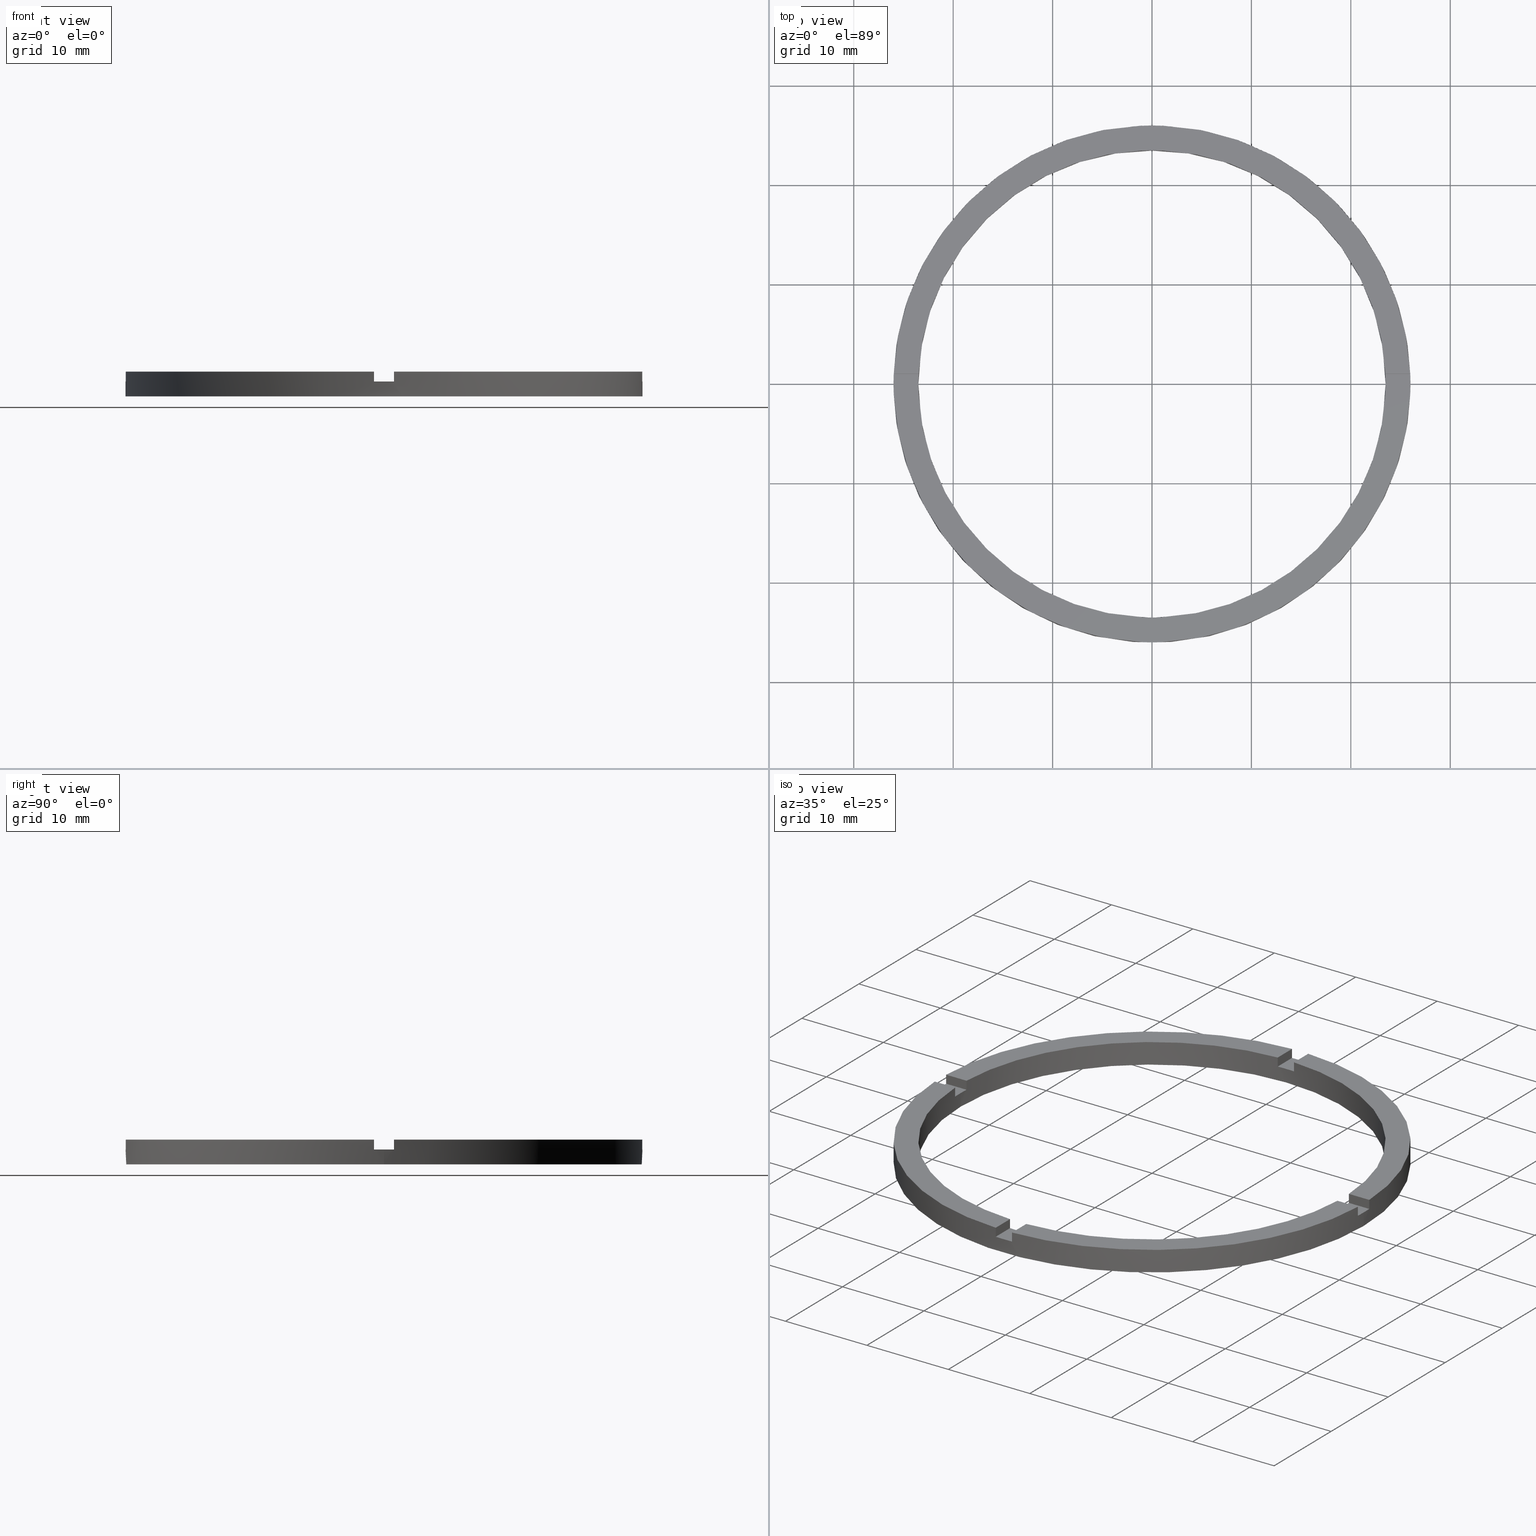
[diagram: canonical four-view strip — front | top / right | iso, engineering-drawing reading convention]
A machine part, canonical four-view strip (front | top / right | iso — engineering-drawing reading convention). The complete STEP part file that produces these views, byte-faithful:
ISO-10303-21;
HEADER;
FILE_DESCRIPTION (( 'STEP AP203' ),
    '1' );
FILE_NAME ('514108.step',
    '2024-12-26T02:38:15',
    ( 'MSI' ),
    ( '' ),
    'SwSTEP 2.0',
    'SolidWorks 2020',
    '' );
FILE_SCHEMA (( 'CONFIG_CONTROL_DESIGN' ));
ENDSEC;

DATA;
#1 = CARTESIAN_POINT ( 'NONE',  ( 0.000000000000000000, 0.000000000000000000, 2.500000000000000000 ) ) ;
#2 = CARTESIAN_POINT ( 'NONE',  ( -1.000000000000160760, -23.47871376374778407, 1.500000000000000000 ) ) ;
#3 = DIRECTION ( 'NONE',  ( 0.000000000000000000, 0.000000000000000000, 1.000000000000000000 ) ) ;
#4 = DIRECTION ( 'NONE',  ( 1.000000000000000000, 0.000000000000000000, -0.000000000000000000 ) ) ;
#5 = VECTOR ( 'NONE', #650, 1000.000000000000000 ) ;
#6 = CARTESIAN_POINT ( 'NONE',  ( 0.9999999999998397948, -25.98076211353317078, 1.500000000000000000 ) ) ;
#7 = VECTOR ( 'NONE', #691, 1000.000000000000000 ) ;
#8 = EDGE_CURVE ( 'NONE', #701, #239, #758, .T. ) ;
#9 = CIRCLE ( 'NONE', #347, 23.50000000000000355 ) ;
#10 = DIRECTION ( 'NONE',  ( 1.000000000000000000, 0.000000000000000000, -0.000000000000000000 ) ) ;
#11 = ORIENTED_EDGE ( 'NONE', *, *, #552, .F. ) ;
#12 = LINE ( 'NONE', #638, #559 ) ;
#13 = VERTEX_POINT ( 'NONE', #108 ) ;
#14 = EDGE_CURVE ( 'NONE', #178, #760, #232, .T. ) ;
#15 = LINE ( 'NONE', #135, #553 ) ;
#16 = DIRECTION ( 'NONE',  ( 0.000000000000000000, 0.000000000000000000, 1.000000000000000000 ) ) ;
#17 = VERTEX_POINT ( 'NONE', #537 ) ;
#18 = CARTESIAN_POINT ( 'NONE',  ( 0.000000000000000000, 0.000000000000000000, 1.500000000000000000 ) ) ;
#19 = CC_DESIGN_APPROVAL ( #477, ( #763 ) ) ;
#20 = FACE_OUTER_BOUND ( 'NONE', #512, .T. ) ;
#21 = AXIS2_PLACEMENT_3D ( 'NONE', #23, #465, #67 ) ;
#22 = VERTEX_POINT ( 'NONE', #409 ) ;
#23 = CARTESIAN_POINT ( 'NONE',  ( 0.000000000000000000, 0.000000000000000000, 1.500000000000000000 ) ) ;
#24 = VECTOR ( 'NONE', #333, 1000.000000000000000 ) ;
#25 = ORIENTED_EDGE ( 'NONE', *, *, #666, .T. ) ;
#26 = VECTOR ( 'NONE', #314, 1000.000000000000000 ) ;
#27 = AXIS2_PLACEMENT_3D ( 'NONE', #125, #646, #530 ) ;
#28 = CIRCLE ( 'NONE', #138, 23.50000000000000355 ) ;
#29 = CARTESIAN_POINT ( 'NONE',  ( -1.000000000000160760, -23.47871376374778407, 2.500000000000000000 ) ) ;
#30 = CIRCLE ( 'NONE', #524, 26.00000000000000355 ) ;
#31 = APPROVAL_ROLE ( '' ) ;
#32 = VECTOR ( 'NONE', #583, 1000.000000000000000 ) ;
#33 = APPLICATION_PROTOCOL_DEFINITION ( 'international standard', 'config_control_design', 1994, #337 ) ;
#34 = LINE ( 'NONE', #479, #570 ) ;
#35 = VECTOR ( 'NONE', #260, 1000.000000000000000 ) ;
#36 = CIRCLE ( 'NONE', #714, 23.50000000000000355 ) ;
#37 = DIRECTION ( 'NONE',  ( 1.000000000000000000, 0.000000000000000000, -0.000000000000000000 ) ) ;
#38 = FACE_OUTER_BOUND ( 'NONE', #680, .T. ) ;
#39 = DIRECTION ( 'NONE',  ( -0.000000000000000000, -0.000000000000000000, -1.000000000000000000 ) ) ;
#40 = LINE ( 'NONE', #722, #568 ) ;
#41 = FACE_OUTER_BOUND ( 'NONE', #224, .T. ) ;
#42 = CARTESIAN_POINT ( 'NONE',  ( -1.000000000000161648, -16.00000000000018119, 2.500000000000000000 ) ) ;
#43 = FACE_OUTER_BOUND ( 'NONE', #238, .T. ) ;
#44 = ADVANCED_FACE ( 'NONE', ( #450 ), #73, .F. ) ;
#45 = VECTOR ( 'NONE', #707, 1000.000000000000000 ) ;
#46 = DIRECTION ( 'NONE',  ( 1.000000000000000000, 0.000000000000000000, 0.000000000000000000 ) ) ;
#47 = CIRCLE ( 'NONE', #768, 23.50000000000000355 ) ;
#48 = LINE ( 'NONE', #197, #35 ) ;
#49 = DIRECTION ( 'NONE',  ( 1.000000000000000000, 1.734723475976806848E-16, -0.000000000000000000 ) ) ;
#50 = LOCAL_TIME ( 10, 38, 15.00000000000000000, #587 ) ;
#51 = COORDINATED_UNIVERSAL_TIME_OFFSET ( 8, 0, .AHEAD. ) ;
#52 = EDGE_CURVE ( 'NONE', #685, #548, #150, .T. ) ;
#53 = COORDINATED_UNIVERSAL_TIME_OFFSET ( 8, 0, .AHEAD. ) ;
#54 = PERSON_AND_ORGANIZATION ( #509, #70 ) ;
#55 = APPROVAL_DATE_TIME ( #318, #86 ) ;
#56 = DIRECTION ( 'NONE',  ( 1.000000000000000000, 0.000000000000000000, -0.000000000000000000 ) ) ;
#57 = LOCAL_TIME ( 10, 38, 15.00000000000000000, #53 ) ;
#58 = ADVANCED_FACE ( 'NONE', ( #414 ), #699, .T. ) ;
#59 = PERSON_AND_ORGANIZATION ( #509, #70 ) ;
#60 = DIRECTION ( 'NONE',  ( 0.000000000000000000, 0.000000000000000000, 1.000000000000000000 ) ) ;
#61 = COORDINATED_UNIVERSAL_TIME_OFFSET ( 8, 0, .AHEAD. ) ;
#62 = ORIENTED_EDGE ( 'NONE', *, *, #147, .T. ) ;
#63 = VERTEX_POINT ( 'NONE', #2 ) ;
#64 = EDGE_CURVE ( 'NONE', #429, #494, #153, .T. ) ;
#65 = VERTEX_POINT ( 'NONE', #708 ) ;
#66 = LOCAL_TIME ( 10, 38, 15.00000000000000000, #582 ) ;
#67 = DIRECTION ( 'NONE',  ( 1.000000000000000000, 0.000000000000000000, -0.000000000000000000 ) ) ;
#68 = PERSON_AND_ORGANIZATION ( #509, #70 ) ;
#69 = ORIENTED_EDGE ( 'NONE', *, *, #390, .T. ) ;
#70 = ORGANIZATION ( 'δָ��', 'δָ��', '' ) ;
#71 = AXIS2_PLACEMENT_3D ( 'NONE', #517, #381, #128 ) ;
#72 = ORIENTED_EDGE ( 'NONE', *, *, #651, .F. ) ;
#73 = PLANE ( 'NONE',  #678 ) ;
#74 = DATE_AND_TIME ( #303, #302 ) ;
#75 = ORIENTED_EDGE ( 'NONE', *, *, #487, .T. ) ;
#76 = DATE_AND_TIME ( #305, #50 ) ;
#77 = EDGE_LOOP ( 'NONE', ( #217, #596, #230, #291 ) ) ;
#78 = DIRECTION ( 'NONE',  ( -0.000000000000000000, -0.000000000000000000, -1.000000000000000000 ) ) ;
#79 = PERSON_AND_ORGANIZATION ( #509, #70 ) ;
#80 = PLANE ( 'NONE',  #348 ) ;
#81 = CARTESIAN_POINT ( 'NONE',  ( 0.000000000000000000, 0.000000000000000000, 1.500000000000000000 ) ) ;
#82 = CARTESIAN_POINT ( 'NONE',  ( 0.000000000000000000, 0.000000000000000000, 2.500000000000000000 ) ) ;
#83 = DIRECTION ( 'NONE',  ( -1.734723475976806848E-16, 1.000000000000000000, 0.000000000000000000 ) ) ;
#84 = CARTESIAN_POINT ( 'NONE',  ( 0.000000000000000000, 0.000000000000000000, 2.500000000000000000 ) ) ;
#85 = EDGE_CURVE ( 'NONE', #694, #760, #172, .T. ) ;
#86 = APPROVAL ( #413, 'δָ��' ) ;
#87 = PLANE ( 'NONE',  #21 ) ;
#88 = CARTESIAN_POINT ( 'NONE',  ( 25.98076211353315657, -1.000000000000157430, 2.500000000000000000 ) ) ;
#89 = AXIS2_PLACEMENT_3D ( 'NONE', #525, #137, #601 ) ;
#90 = EDGE_CURVE ( 'NONE', #163, #731, #158, .T. ) ;
#91 = CARTESIAN_POINT ( 'NONE',  ( 25.98076211353317078, 0.9999999999998425704, 2.500000000000000000 ) ) ;
#92 = VERTEX_POINT ( 'NONE', #6 ) ;
#93 = AXIS2_PLACEMENT_3D ( 'NONE', #293, #687, #607 ) ;
#94 = DIRECTION ( 'NONE',  ( -0.000000000000000000, -0.000000000000000000, -1.000000000000000000 ) ) ;
#95 = EDGE_CURVE ( 'NONE', #63, #120, #676, .T. ) ;
#96 = DIRECTION ( 'NONE',  ( 1.301042606982605074E-16, -1.000000000000000000, 0.000000000000000000 ) ) ;
#97 = AXIS2_PLACEMENT_3D ( 'NONE', #463, #299, #529 ) ;
#98 = DIRECTION ( 'NONE',  ( 0.000000000000000000, -0.000000000000000000, 1.000000000000000000 ) ) ;
#99 = CARTESIAN_POINT ( 'NONE',  ( 23.50000000000000355, 2.877919977996280715E-15, 1.500000000000000000 ) ) ;
#100 = VERTEX_POINT ( 'NONE', #579 ) ;
#101 = DIRECTION ( 'NONE',  ( 1.000000000000000000, 0.000000000000000000, 0.000000000000000000 ) ) ;
#102 = CARTESIAN_POINT ( 'NONE',  ( -26.00000000000000355, 0.000000000000000000, 2.500000000000000000 ) ) ;
#103 = DIRECTION ( 'NONE',  ( 0.000000000000000000, 0.000000000000000000, 1.000000000000000000 ) ) ;
#104 = ADVANCED_FACE ( 'NONE', ( #675 ), #684, .F. ) ;
#105 = DIRECTION ( 'NONE',  ( 1.000000000000000000, 0.000000000000000000, 0.000000000000000000 ) ) ;
#106 = CARTESIAN_POINT ( 'NONE',  ( 23.47871376374779828, 0.9999999999998425704, 2.500000000000000000 ) ) ;
#107 = EDGE_CURVE ( 'NONE', #731, #685, #156, .T. ) ;
#108 = CARTESIAN_POINT ( 'NONE',  ( 23.47871376374778407, -1.000000000000157430, 1.500000000000000000 ) ) ;
#109 = CC_DESIGN_APPROVAL ( #86, ( #663 ) ) ;
#110 = CARTESIAN_POINT ( 'NONE',  ( 0.000000000000000000, 0.000000000000000000, 1.500000000000000000 ) ) ;
#111 = DIRECTION ( 'NONE',  ( 1.000000000000000000, 4.336808689942017120E-17, 0.000000000000000000 ) ) ;
#112 = CARTESIAN_POINT ( 'NONE',  ( -1.000000000000026201, 23.47871376374779118, 1.500000000000000000 ) ) ;
#113 = AXIS2_PLACEMENT_3D ( 'NONE', #353, #702, #782 ) ;
#114 = AXIS2_PLACEMENT_3D ( 'NONE', #659, #614, #306 ) ;
#115 = DIRECTION ( 'NONE',  ( 1.000000000000000000, 0.000000000000000000, 0.000000000000000000 ) ) ;
#116 = VERTEX_POINT ( 'NONE', #738 ) ;
#117 = DIRECTION ( 'NONE',  ( 4.336808689942017120E-17, -1.000000000000000000, 0.000000000000000000 ) ) ;
#118 = AXIS2_PLACEMENT_3D ( 'NONE', #655, #773, #105 ) ;
#119 = ORIENTED_EDGE ( 'NONE', *, *, #756, .F. ) ;
#120 = VERTEX_POINT ( 'NONE', #29 ) ;
#121 = EDGE_CURVE ( 'NONE', #731, #17, #449, .T. ) ;
#122 = ORIENTED_EDGE ( 'NONE', *, *, #608, .T. ) ;
#123 = DIRECTION ( 'NONE',  ( -0.000000000000000000, -0.000000000000000000, -1.000000000000000000 ) ) ;
#124 = PLANE ( 'NONE',  #482 ) ;
#125 = CARTESIAN_POINT ( 'NONE',  ( 0.9999999999999737987, 16.00000000000000000, 1.500000000000000000 ) ) ;
#126 = DIRECTION ( 'NONE',  ( -1.000000000000000000, -4.336808689942017120E-17, -0.000000000000000000 ) ) ;
#127 = CARTESIAN_POINT ( 'NONE',  ( 26.00000000000000355, 3.184081677783118585E-15, 2.500000000000000000 ) ) ;
#128 = DIRECTION ( 'NONE',  ( 1.000000000000000000, 0.000000000000000000, 0.000000000000000000 ) ) ;
#129 = MECHANICAL_CONTEXT ( 'NONE', #337, 'mechanical' ) ;
#130 = DESIGN_CONTEXT ( 'detailed design', #382, 'design' ) ;
#131 = CARTESIAN_POINT ( 'NONE',  ( 0.000000000000000000, 0.000000000000000000, 0.000000000000000000 ) ) ;
#132 =( NAMED_UNIT ( * ) PLANE_ANGLE_UNIT ( ) SI_UNIT ( $, .RADIAN. ) );
#133 = CARTESIAN_POINT ( 'NONE',  ( -25.98076211353316367, -1.000000000000026201, 1.500000000000000000 ) ) ;
#134 = AXIS2_PLACEMENT_3D ( 'NONE', #142, #781, #765 ) ;
#135 = CARTESIAN_POINT ( 'NONE',  ( 0.9999999999999737987, 25.98076211353316367, 2.500000000000000000 ) ) ;
#136 = CC_DESIGN_PERSON_AND_ORGANIZATION_ASSIGNMENT ( #79, #404, ( #763 ) ) ;
#137 = DIRECTION ( 'NONE',  ( 0.000000000000000000, 0.000000000000000000, 1.000000000000000000 ) ) ;
#138 = AXIS2_PLACEMENT_3D ( 'NONE', #203, #343, #46 ) ;
#139 = AXIS2_PLACEMENT_3D ( 'NONE', #82, #630, #665 ) ;
#140 = CARTESIAN_POINT ( 'NONE',  ( -25.98076211353316367, 0.9999999999999737987, 2.500000000000000000 ) ) ;
#141 = ADVANCED_FACE ( 'NONE', ( #152 ), #439, .F. ) ;
#142 = CARTESIAN_POINT ( 'NONE',  ( 0.000000000000000000, 0.000000000000000000, 2.500000000000000000 ) ) ;
#143 = CARTESIAN_POINT ( 'NONE',  ( 0.000000000000000000, 0.000000000000000000, 2.500000000000000000 ) ) ;
#144 = LINE ( 'NONE', #667, #164 ) ;
#145 = ADVANCED_FACE ( 'NONE', ( #703 ), #279, .F. ) ;
#146 = CARTESIAN_POINT ( 'NONE',  ( 23.47871376374779828, 0.9999999999998425704, 1.500000000000000000 ) ) ;
#147 = EDGE_CURVE ( 'NONE', #22, #481, #434, .T. ) ;
#148 = LINE ( 'NONE', #211, #425 ) ;
#149 = LINE ( 'NONE', #400, #695 ) ;
#150 = CIRCLE ( 'NONE', #114, 26.00000000000000355 ) ;
#151 = CARTESIAN_POINT ( 'NONE',  ( 0.000000000000000000, 0.000000000000000000, 2.500000000000000000 ) ) ;
#152 = FACE_OUTER_BOUND ( 'NONE', #589, .T. ) ;
#153 = LINE ( 'NONE', #643, #406 ) ;
#154 = ORIENTED_EDGE ( 'NONE', *, *, #511, .T. ) ;
#155 = CARTESIAN_POINT ( 'NONE',  ( 23.50000000000000355, 2.877919977996280715E-15, 2.500000000000000000 ) ) ;
#156 = LINE ( 'NONE', #127, #157 ) ;
#157 = VECTOR ( 'NONE', #627, 1000.000000000000000 ) ;
#158 = CIRCLE ( 'NONE', #652, 26.00000000000000355 ) ;
#159 = CIRCLE ( 'NONE', #394, 26.00000000000000355 ) ;
#160 = ORIENTED_EDGE ( 'NONE', *, *, #350, .T. ) ;
#161 = VECTOR ( 'NONE', #357, 1000.000000000000000 ) ;
#162 = DIRECTION ( 'NONE',  ( 0.000000000000000000, 0.000000000000000000, 1.000000000000000000 ) ) ;
#163 = VERTEX_POINT ( 'NONE', #388 ) ;
#164 = VECTOR ( 'NONE', #49, 1000.000000000000000 ) ;
#165 = PERSON_AND_ORGANIZATION_ROLE ( 'design_supplier' ) ;
#166 = ORIENTED_EDGE ( 'NONE', *, *, #645, .F. ) ;
#167 = PLANE ( 'NONE',  #629 ) ;
#168 = CYLINDRICAL_SURFACE ( 'NONE', #97, 26.00000000000000355 ) ;
#169 = ORIENTED_EDGE ( 'NONE', *, *, #257, .T. ) ;
#170 = EDGE_CURVE ( 'NONE', #116, #766, #144, .T. ) ;
#171 = FACE_OUTER_BOUND ( 'NONE', #502, .T. ) ;
#172 = CIRCLE ( 'NONE', #641, 26.00000000000000355 ) ;
#173 = ORIENTED_EDGE ( 'NONE', *, *, #107, .F. ) ;
#174 = VECTOR ( 'NONE', #325, 1000.000000000000000 ) ;
#175 = ORIENTED_EDGE ( 'NONE', *, *, #552, .T. ) ;
#176 = EDGE_CURVE ( 'NONE', #429, #770, #447, .T. ) ;
#177 =( LENGTH_UNIT ( ) NAMED_UNIT ( * ) SI_UNIT ( .MILLI., .METRE. ) );
#178 = VERTEX_POINT ( 'NONE', #532 ) ;
#179 = AXIS2_PLACEMENT_3D ( 'NONE', #143, #284, #391 ) ;
#180 = LINE ( 'NONE', #474, #673 ) ;
#181 = CARTESIAN_POINT ( 'NONE',  ( 0.000000000000000000, 0.000000000000000000, 2.500000000000000000 ) ) ;
#182 = LINE ( 'NONE', #683, #452 ) ;
#183 = CARTESIAN_POINT ( 'NONE',  ( 0.9999999999998384625, -16.00000000000018119, 2.500000000000000000 ) ) ;
#184 = ORIENTED_EDGE ( 'NONE', *, *, #720, .T. ) ;
#185 = DIRECTION ( 'NONE',  ( 0.000000000000000000, 0.000000000000000000, 1.000000000000000000 ) ) ;
#186 = VERTEX_POINT ( 'NONE', #636 ) ;
#187 = EDGE_CURVE ( 'NONE', #548, #685, #410, .T. ) ;
#188 = ORIENTED_EDGE ( 'NONE', *, *, #271, .F. ) ;
#189 = CARTESIAN_POINT ( 'NONE',  ( 0.000000000000000000, 0.000000000000000000, 1.500000000000000000 ) ) ;
#190 = ORIENTED_EDGE ( 'NONE', *, *, #438, .F. ) ;
#191 = PLANE ( 'NONE',  #571 ) ;
#192 = ORIENTED_EDGE ( 'NONE', *, *, #307, .F. ) ;
#193 = PERSON_AND_ORGANIZATION_ROLE ( 'design_owner' ) ;
#194 = ORIENTED_EDGE ( 'NONE', *, *, #170, .T. ) ;
#195 = ORIENTED_EDGE ( 'NONE', *, *, #223, .T. ) ;
#196 = VERTEX_POINT ( 'NONE', #779 ) ;
#197 = CARTESIAN_POINT ( 'NONE',  ( 23.47871376374778407, -1.000000000000157430, 2.500000000000000000 ) ) ;
#198 = ORIENTED_EDGE ( 'NONE', *, *, #370, .T. ) ;
#199 = ORIENTED_EDGE ( 'NONE', *, *, #370, .F. ) ;
#200 = ORIENTED_EDGE ( 'NONE', *, *, #718, .F. ) ;
#201 = ORIENTED_EDGE ( 'NONE', *, *, #645, .T. ) ;
#202 = VERTEX_POINT ( 'NONE', #140 ) ;
#203 = CARTESIAN_POINT ( 'NONE',  ( 0.000000000000000000, 0.000000000000000000, 1.500000000000000000 ) ) ;
#204 = ORIENTED_EDGE ( 'NONE', *, *, #14, .F. ) ;
#205 = ORIENTED_EDGE ( 'NONE', *, *, #640, .F. ) ;
#206 = EDGE_CURVE ( 'NONE', #436, #737, #697, .T. ) ;
#207 = VERTEX_POINT ( 'NONE', #99 ) ;
#208 = ORIENTED_EDGE ( 'NONE', *, *, #8, .T. ) ;
#209 = DIRECTION ( 'NONE',  ( -1.000000000000000000, -4.336808689942017120E-17, -0.000000000000000000 ) ) ;
#210 = ORIENTED_EDGE ( 'NONE', *, *, #430, .F. ) ;
#211 = CARTESIAN_POINT ( 'NONE',  ( -23.47871376374779118, -1.000000000000025757, 2.500000000000000000 ) ) ;
#212 = PRODUCT_RELATED_PRODUCT_CATEGORY ( 'detail', '', ( #339 ) ) ;
#213 = VERTEX_POINT ( 'NONE', #146 ) ;
#214 = CC_DESIGN_SECURITY_CLASSIFICATION ( #663, ( #763 ) ) ;
#215 = EDGE_LOOP ( 'NONE', ( #478, #740, #572, #485 ) ) ;
#216 = ORIENTED_EDGE ( 'NONE', *, *, #487, .F. ) ;
#217 = ORIENTED_EDGE ( 'NONE', *, *, #64, .F. ) ;
#218 = CARTESIAN_POINT ( 'NONE',  ( 15.99999999999999645, -1.000000000000157874, 1.500000000000000000 ) ) ;
#219 = ORIENTED_EDGE ( 'NONE', *, *, #526, .T. ) ;
#220 = CARTESIAN_POINT ( 'NONE',  ( -26.00000000000000355, 0.000000000000000000, 0.000000000000000000 ) ) ;
#221 = ORIENTED_EDGE ( 'NONE', *, *, #669, .T. ) ;
#222 = ADVANCED_FACE ( 'NONE', ( #688 ), #418, .F. ) ;
#223 = EDGE_CURVE ( 'NONE', #436, #622, #408, .T. ) ;
#224 = EDGE_LOOP ( 'NONE', ( #75, #600, #464, #287 ) ) ;
#225 = EDGE_LOOP ( 'NONE', ( #272, #567, #324, #574 ) ) ;
#226 = EDGE_CURVE ( 'NONE', #120, #186, #677, .T. ) ;
#227 = PLANE ( 'NONE',  #113 ) ;
#228 = ORIENTED_EDGE ( 'NONE', *, *, #271, .T. ) ;
#229 = AXIS2_PLACEMENT_3D ( 'NONE', #110, #304, #617 ) ;
#230 = ORIENTED_EDGE ( 'NONE', *, *, #411, .T. ) ;
#231 = EDGE_LOOP ( 'NONE', ( #455, #729, #233, #11 ) ) ;
#232 = LINE ( 'NONE', #623, #674 ) ;
#233 = ORIENTED_EDGE ( 'NONE', *, *, #411, .F. ) ;
#234 = ORIENTED_EDGE ( 'NONE', *, *, #501, .F. ) ;
#235 = DIRECTION ( 'NONE',  ( 0.000000000000000000, 0.000000000000000000, 1.000000000000000000 ) ) ;
#236 = ORIENTED_EDGE ( 'NONE', *, *, #780, .F. ) ;
#237 = DIRECTION ( 'NONE',  ( 0.000000000000000000, 0.000000000000000000, 1.000000000000000000 ) ) ;
#238 = EDGE_LOOP ( 'NONE', ( #194, #746, #483, #236 ) ) ;
#239 = VERTEX_POINT ( 'NONE', #133 ) ;
#240 = ORIENTED_EDGE ( 'NONE', *, *, #772, .F. ) ;
#241 = CARTESIAN_POINT ( 'NONE',  ( -1.000000000000026201, 16.00000000000000000, 1.500000000000000000 ) ) ;
#242 = ORIENTED_EDGE ( 'NONE', *, *, #469, .F. ) ;
#243 = CARTESIAN_POINT ( 'NONE',  ( -16.00000000000018474, -1.000000000000024425, 1.500000000000000000 ) ) ;
#244 = CARTESIAN_POINT ( 'NONE',  ( -16.00000000000018474, 0.9999999999999754641, 2.500000000000000000 ) ) ;
#245 = CARTESIAN_POINT ( 'NONE',  ( -23.47871376374779118, -1.000000000000025757, 2.500000000000000000 ) ) ;
#246 = DIRECTION ( 'NONE',  ( 1.000000000000000000, 0.000000000000000000, 0.000000000000000000 ) ) ;
#247 = APPROVAL_STATUS ( 'not_yet_approved' ) ;
#248 = APPLICATION_PROTOCOL_DEFINITION ( 'international standard', 'config_control_design', 1994, #382 ) ;
#249 = CARTESIAN_POINT ( 'NONE',  ( -16.00000000000018474, 0.9999999999999754641, 1.500000000000000000 ) ) ;
#250 = PLANE ( 'NONE',  #372 ) ;
#251 = EDGE_CURVE ( 'NONE', #328, #186, #180, .T. ) ;
#252 = CARTESIAN_POINT ( 'NONE',  ( -26.00000000000000355, 0.000000000000000000, 1.500000000000000000 ) ) ;
#253 = CC_DESIGN_PERSON_AND_ORGANIZATION_ASSIGNMENT ( #68, #193, ( #339 ) ) ;
#254 = DIRECTION ( 'NONE',  ( 0.000000000000000000, -0.000000000000000000, 1.000000000000000000 ) ) ;
#255 = DIRECTION ( 'NONE',  ( 0.000000000000000000, 0.000000000000000000, 1.000000000000000000 ) ) ;
#256 = CARTESIAN_POINT ( 'NONE',  ( -23.50000000000000355, 0.000000000000000000, 2.500000000000000000 ) ) ;
#257 = EDGE_CURVE ( 'NONE', #116, #186, #700, .T. ) ;
#258 = ORIENTED_EDGE ( 'NONE', *, *, #578, .F. ) ;
#259 = AXIS2_PLACEMENT_3D ( 'NONE', #767, #60, #693 ) ;
#260 = DIRECTION ( 'NONE',  ( 0.000000000000000000, 0.000000000000000000, 1.000000000000000000 ) ) ;
#261 = FACE_OUTER_BOUND ( 'NONE', #77, .T. ) ;
#262 = CIRCLE ( 'NONE', #179, 23.50000000000000355 ) ;
#263 = VECTOR ( 'NONE', #39, 1000.000000000000000 ) ;
#264 = ADVANCED_FACE ( 'NONE', ( #171 ), #421, .T. ) ;
#265 = ORIENTED_EDGE ( 'NONE', *, *, #523, .F. ) ;
#266 = FACE_OUTER_BOUND ( 'NONE', #654, .T. ) ;
#267 = LINE ( 'NONE', #244, #26 ) ;
#268 = ORIENTED_EDGE ( 'NONE', *, *, #359, .F. ) ;
#269 = CARTESIAN_POINT ( 'NONE',  ( 0.000000000000000000, 0.000000000000000000, 1.500000000000000000 ) ) ;
#270 = VECTOR ( 'NONE', #94, 1000.000000000000000 ) ;
#271 = EDGE_CURVE ( 'NONE', #701, #548, #437, .T. ) ;
#272 = ORIENTED_EDGE ( 'NONE', *, *, #720, .F. ) ;
#273 = LINE ( 'NONE', #635, #551 ) ;
#274 = ORIENTED_EDGE ( 'NONE', *, *, #374, .T. ) ;
#275 = VECTOR ( 'NONE', #557, 1000.000000000000000 ) ;
#276 = CIRCLE ( 'NONE', #71, 23.50000000000000355 ) ;
#277 = CIRCLE ( 'NONE', #613, 26.00000000000000355 ) ;
#278 = LINE ( 'NONE', #320, #565 ) ;
#279 = PLANE ( 'NONE',  #632 ) ;
#280 = FACE_OUTER_BOUND ( 'NONE', #757, .T. ) ;
#281 = FACE_OUTER_BOUND ( 'NONE', #540, .T. ) ;
#282 = LINE ( 'NONE', #657, #24 ) ;
#283 = VECTOR ( 'NONE', #331, 1000.000000000000000 ) ;
#284 = DIRECTION ( 'NONE',  ( 0.000000000000000000, 0.000000000000000000, 1.000000000000000000 ) ) ;
#285 = LINE ( 'NONE', #183, #298 ) ;
#286 = LINE ( 'NONE', #379, #270 ) ;
#287 = ORIENTED_EDGE ( 'NONE', *, *, #428, .T. ) ;
#288 = UNCERTAINTY_MEASURE_WITH_UNIT (LENGTH_MEASURE( 1.000000000000000082E-05 ), #177, 'distance_accuracy_value', 'NONE');
#289 = CIRCLE ( 'NONE', #139, 23.50000000000000355 ) ;
#290 = FACE_BOUND ( 'NONE', #468, .T. ) ;
#291 = ORIENTED_EDGE ( 'NONE', *, *, #374, .F. ) ;
#292 = PLANE ( 'NONE',  #649 ) ;
#293 = CARTESIAN_POINT ( 'NONE',  ( 0.000000000000000000, 0.000000000000000000, 2.500000000000000000 ) ) ;
#294 = EDGE_CURVE ( 'NONE', #328, #92, #682, .T. ) ;
#295 = LINE ( 'NONE', #715, #573 ) ;
#296 = LINE ( 'NONE', #316, #32 ) ;
#297 = AXIS2_PLACEMENT_3D ( 'NONE', #488, #162, #356 ) ;
#298 = VECTOR ( 'NONE', #405, 1000.000000000000000 ) ;
#299 = DIRECTION ( 'NONE',  ( -0.000000000000000000, -0.000000000000000000, -1.000000000000000000 ) ) ;
#300 = PRODUCT_DEFINITION ( 'δ֪', '', #763, #130 ) ;
#301 = CARTESIAN_POINT ( 'NONE',  ( 0.000000000000000000, 0.000000000000000000, 2.500000000000000000 ) ) ;
#302 = LOCAL_TIME ( 10, 38, 15.00000000000000000, #51 ) ;
#303 = CALENDAR_DATE ( 2024, 26, 12 ) ;
#304 = DIRECTION ( 'NONE',  ( 0.000000000000000000, -0.000000000000000000, 1.000000000000000000 ) ) ;
#305 = CALENDAR_DATE ( 2024, 26, 12 ) ;
#306 = DIRECTION ( 'NONE',  ( 1.000000000000000000, 0.000000000000000000, 0.000000000000000000 ) ) ;
#307 = EDGE_CURVE ( 'NONE', #766, #196, #148, .T. ) ;
#308 = EDGE_CURVE ( 'NONE', #766, #120, #705, .T. ) ;
#309 = APPROVAL_DATE_TIME ( #74, #477 ) ;
#310 = CARTESIAN_POINT ( 'NONE',  ( 0.000000000000000000, 0.000000000000000000, 1.500000000000000000 ) ) ;
#311 = VERTEX_POINT ( 'NONE', #472 ) ;
#312 = PLANE ( 'NONE',  #441 ) ;
#313 = APPROVAL_PERSON_ORGANIZATION ( #581, #86, #31 ) ;
#314 = DIRECTION ( 'NONE',  ( -1.000000000000000000, -1.734723475976806848E-16, 0.000000000000000000 ) ) ;
#315 = VERTEX_POINT ( 'NONE', #606 ) ;
#316 = CARTESIAN_POINT ( 'NONE',  ( -1.000000000000161648, -16.00000000000018119, 1.500000000000000000 ) ) ;
#317 = EDGE_LOOP ( 'NONE', ( #432, #160, #473, #184 ) ) ;
#318 = DATE_AND_TIME ( #330, #66 ) ;
#319 = DIRECTION ( 'NONE',  ( 1.000000000000000000, 0.000000000000000000, 0.000000000000000000 ) ) ;
#320 = CARTESIAN_POINT ( 'NONE',  ( 23.47871376374779828, 0.9999999999998425704, 2.500000000000000000 ) ) ;
#321 = LOCAL_TIME ( 10, 38, 15.00000000000000000, #61 ) ;
#322 = VERTEX_POINT ( 'NONE', #112 ) ;
#323 = CARTESIAN_POINT ( 'NONE',  ( 0.000000000000000000, 0.000000000000000000, 1.500000000000000000 ) ) ;
#324 = ORIENTED_EDGE ( 'NONE', *, *, #226, .T. ) ;
#325 = DIRECTION ( 'NONE',  ( 0.000000000000000000, 0.000000000000000000, 1.000000000000000000 ) ) ;
#326 = CARTESIAN_POINT ( 'NONE',  ( -1.000000000000026201, 23.47871376374779118, 2.500000000000000000 ) ) ;
#327 = CALENDAR_DATE ( 2024, 26, 12 ) ;
#328 = VERTEX_POINT ( 'NONE', #538 ) ;
#329 = CARTESIAN_POINT ( 'NONE',  ( -1.000000000000026201, 16.00000000000000000, 1.500000000000000000 ) ) ;
#330 = CALENDAR_DATE ( 2024, 26, 12 ) ;
#331 = DIRECTION ( 'NONE',  ( 1.000000000000000000, 1.734723475976806848E-16, -0.000000000000000000 ) ) ;
#332 = ORIENTED_EDGE ( 'NONE', *, *, #578, .T. ) ;
#333 = DIRECTION ( 'NONE',  ( 0.000000000000000000, 1.000000000000000000, 0.000000000000000000 ) ) ;
#334 = DIRECTION ( 'NONE',  ( 0.000000000000000000, -0.000000000000000000, 1.000000000000000000 ) ) ;
#335 = ADVANCED_FACE ( 'NONE', ( #427 ), #361, .T. ) ;
#336 = CARTESIAN_POINT ( 'NONE',  ( -1.000000000000026201, 25.98076211353316367, 2.500000000000000000 ) ) ;
#337 = APPLICATION_CONTEXT ( 'configuration controlled 3d designs of mechanical parts and assemblies' ) ;
#338 = EDGE_CURVE ( 'NONE', #436, #202, #159, .T. ) ;
#339 = PRODUCT ( '514108', '514108', '', ( #129 ) ) ;
#340 = AXIS2_PLACEMENT_3D ( 'NONE', #644, #615, #395 ) ;
#341 = PERSON_AND_ORGANIZATION ( #509, #70 ) ;
#342 = APPROVAL ( #415, 'δָ��' ) ;
#343 = DIRECTION ( 'NONE',  ( 0.000000000000000000, -0.000000000000000000, 1.000000000000000000 ) ) ;
#344 = AXIS2_PLACEMENT_3D ( 'NONE', #531, #611, #639 ) ;
#345 = MANIFOLD_SOLID_BREP ( '�г�-����1', #462 ) ;
#346 = DIRECTION ( 'NONE',  ( 0.000000000000000000, 0.000000000000000000, 1.000000000000000000 ) ) ;
#347 = AXIS2_PLACEMENT_3D ( 'NONE', #18, #373, #246 ) ;
#348 = AXIS2_PLACEMENT_3D ( 'NONE', #376, #185, #10 ) ;
#349 = ADVANCED_FACE ( 'NONE', ( #670 ), #168, .T. ) ;
#350 = EDGE_CURVE ( 'NONE', #92, #315, #431, .T. ) ;
#351 = EDGE_LOOP ( 'NONE', ( #204, #200, #461, #497 ) ) ;
#352 = DIRECTION ( 'NONE',  ( 1.000000000000000000, 0.000000000000000000, 0.000000000000000000 ) ) ;
#353 = CARTESIAN_POINT ( 'NONE',  ( 0.000000000000000000, 0.000000000000000000, 1.500000000000000000 ) ) ;
#354 = CARTESIAN_POINT ( 'NONE',  ( 0.000000000000000000, 0.000000000000000000, 1.500000000000000000 ) ) ;
#355 = CARTESIAN_POINT ( 'NONE',  ( -23.50000000000000355, 0.000000000000000000, 1.500000000000000000 ) ) ;
#356 = DIRECTION ( 'NONE',  ( 1.000000000000000000, 0.000000000000000000, -0.000000000000000000 ) ) ;
#357 = DIRECTION ( 'NONE',  ( -1.301042606982605074E-16, 1.000000000000000000, -0.000000000000000000 ) ) ;
#358 = DIRECTION ( 'NONE',  ( 0.000000000000000000, 0.000000000000000000, 1.000000000000000000 ) ) ;
#359 = EDGE_CURVE ( 'NONE', #311, #315, #149, .T. ) ;
#360 = DIRECTION ( 'NONE',  ( 1.000000000000000000, 0.000000000000000000, 0.000000000000000000 ) ) ;
#361 = PLANE ( 'NONE',  #730 ) ;
#362 = EDGE_CURVE ( 'NONE', #163, #760, #182, .T. ) ;
#363 = DIRECTION ( 'NONE',  ( 0.000000000000000000, 0.000000000000000000, 1.000000000000000000 ) ) ;
#364 = DIRECTION ( 'NONE',  ( -1.000000000000000000, -1.301042606982605074E-16, 0.000000000000000000 ) ) ;
#365 = DIRECTION ( 'NONE',  ( 1.734723475976806848E-16, -1.000000000000000000, 0.000000000000000000 ) ) ;
#366 = EDGE_CURVE ( 'NONE', #22, #322, #692, .T. ) ;
#367 = PERSON_AND_ORGANIZATION_ROLE ( 'classification_officer' ) ;
#368 = PLANE ( 'NONE',  #423 ) ;
#369 = AXIS2_PLACEMENT_3D ( 'NONE', #1, #397, #647 ) ;
#370 = EDGE_CURVE ( 'NONE', #13, #163, #412, .T. ) ;
#371 = DIRECTION ( 'NONE',  ( -0.000000000000000000, -0.000000000000000000, -1.000000000000000000 ) ) ;
#372 = AXIS2_PLACEMENT_3D ( 'NONE', #329, #375, #419 ) ;
#373 = DIRECTION ( 'NONE',  ( 0.000000000000000000, 0.000000000000000000, 1.000000000000000000 ) ) ;
#374 = EDGE_CURVE ( 'NONE', #494, #202, #12, .T. ) ;
#375 = DIRECTION ( 'NONE',  ( -1.000000000000000000, 0.000000000000000000, 0.000000000000000000 ) ) ;
#376 = CARTESIAN_POINT ( 'NONE',  ( 0.000000000000000000, 0.000000000000000000, 2.500000000000000000 ) ) ;
#377 = DIRECTION ( 'NONE',  ( 1.000000000000000000, 0.000000000000000000, 0.000000000000000000 ) ) ;
#378 = ADVANCED_FACE ( 'NONE', ( #43 ), #312, .F. ) ;
#379 = CARTESIAN_POINT ( 'NONE',  ( -25.98076211353316367, -1.000000000000026201, 2.500000000000000000 ) ) ;
#380 = PRODUCT_DEFINITION_SHAPE ( 'NONE', 'NONE',  #300 ) ;
#381 = DIRECTION ( 'NONE',  ( 0.000000000000000000, 0.000000000000000000, 1.000000000000000000 ) ) ;
#382 = APPLICATION_CONTEXT ( 'configuration controlled 3d designs of mechanical parts and assemblies' ) ;
#383 = ADVANCED_FACE ( 'NONE', ( #280 ), #87, .T. ) ;
#384 = DIRECTION ( 'NONE',  ( -0.000000000000000000, 0.000000000000000000, 1.000000000000000000 ) ) ;
#385 = EDGE_CURVE ( 'NONE', #694, #311, #285, .T. ) ;
#386 = CARTESIAN_POINT ( 'NONE',  ( 0.9999999999998384625, -16.00000000000018119, 1.500000000000000000 ) ) ;
#387 = CC_DESIGN_PERSON_AND_ORGANIZATION_ASSIGNMENT ( #54, #367, ( #663 ) ) ;
#388 = CARTESIAN_POINT ( 'NONE',  ( 25.98076211353315657, -1.000000000000157430, 1.500000000000000000 ) ) ;
#389 = ADVANCED_FACE ( 'NONE', ( #20 ), #250, .F. ) ;
#390 = EDGE_CURVE ( 'NONE', #494, #701, #277, .T. ) ;
#391 = DIRECTION ( 'NONE',  ( 1.000000000000000000, 0.000000000000000000, 0.000000000000000000 ) ) ;
#392 = DIRECTION ( 'NONE',  ( -4.336808689942017120E-17, 1.000000000000000000, 0.000000000000000000 ) ) ;
#393 = AXIS2_PLACEMENT_3D ( 'NONE', #435, #407, #743 ) ;
#394 = AXIS2_PLACEMENT_3D ( 'NONE', #403, #235, #489 ) ;
#395 = DIRECTION ( 'NONE',  ( 1.000000000000000000, 0.000000000000000000, 0.000000000000000000 ) ) ;
#396 = DIRECTION ( 'NONE',  ( 0.000000000000000000, -0.000000000000000000, 1.000000000000000000 ) ) ;
#397 = DIRECTION ( 'NONE',  ( -0.000000000000000000, -0.000000000000000000, -1.000000000000000000 ) ) ;
#398 = CARTESIAN_POINT ( 'NONE',  ( 0.000000000000000000, 0.000000000000000000, 2.500000000000000000 ) ) ;
#399 = DIRECTION ( 'NONE',  ( -1.000000000000000000, -1.734723475976806848E-16, 0.000000000000000000 ) ) ;
#400 = CARTESIAN_POINT ( 'NONE',  ( 0.9999999999998393507, -23.47871376374779828, 2.500000000000000000 ) ) ;
#401 = DIRECTION ( 'NONE',  ( -0.000000000000000000, -0.000000000000000000, -1.000000000000000000 ) ) ;
#402 = DIRECTION ( 'NONE',  ( 1.301042606982605074E-16, -1.000000000000000000, 0.000000000000000000 ) ) ;
#403 = CARTESIAN_POINT ( 'NONE',  ( 0.000000000000000000, 0.000000000000000000, 2.500000000000000000 ) ) ;
#404 = PERSON_AND_ORGANIZATION_ROLE ( 'creator' ) ;
#405 = DIRECTION ( 'NONE',  ( -1.301042606982605074E-16, 1.000000000000000000, -0.000000000000000000 ) ) ;
#406 = VECTOR ( 'NONE', #399, 1000.000000000000000 ) ;
#407 = DIRECTION ( 'NONE',  ( 0.000000000000000000, 0.000000000000000000, 1.000000000000000000 ) ) ;
#408 = LINE ( 'NONE', #751, #416 ) ;
#409 = CARTESIAN_POINT ( 'NONE',  ( 0.9999999999999737987, 23.47871376374779473, 1.500000000000000000 ) ) ;
#410 = CIRCLE ( 'NONE', #259, 26.00000000000000355 ) ;
#411 = EDGE_CURVE ( 'NONE', #770, #202, #267, .T. ) ;
#412 = LINE ( 'NONE', #218, #444 ) ;
#413 = APPROVAL_STATUS ( 'not_yet_approved' ) ;
#414 = FACE_OUTER_BOUND ( 'NONE', #426, .T. ) ;
#415 = APPROVAL_STATUS ( 'not_yet_approved' ) ;
#416 = VECTOR ( 'NONE', #519, 1000.000000000000000 ) ;
#417 = CC_DESIGN_PERSON_AND_ORGANIZATION_ASSIGNMENT ( #591, #165, ( #763 ) ) ;
#418 = CYLINDRICAL_SURFACE ( 'NONE', #93, 23.50000000000000355 ) ;
#419 = DIRECTION ( 'NONE',  ( 0.000000000000000000, 0.000000000000000000, 1.000000000000000000 ) ) ;
#420 = ORIENTED_EDGE ( 'NONE', *, *, #640, .T. ) ;
#421 = CYLINDRICAL_SURFACE ( 'NONE', #369, 26.00000000000000355 ) ;
#422 = DIRECTION ( 'NONE',  ( 1.000000000000000000, 0.000000000000000000, -0.000000000000000000 ) ) ;
#423 = AXIS2_PLACEMENT_3D ( 'NONE', #323, #334, #422 ) ;
#424 = ORIENTED_EDGE ( 'NONE', *, *, #616, .T. ) ;
#425 = VECTOR ( 'NONE', #527, 1000.000000000000000 ) ;
#426 = EDGE_LOOP ( 'NONE', ( #258, #190, #240, #728 ) ) ;
#427 = FACE_OUTER_BOUND ( 'NONE', #467, .T. ) ;
#428 = EDGE_CURVE ( 'NONE', #22, #698, #282, .T. ) ;
#429 = VERTEX_POINT ( 'NONE', #586 ) ;
#430 = EDGE_CURVE ( 'NONE', #65, #721, #534, .T. ) ;
#431 = LINE ( 'NONE', #621, #161 ) ;
#432 = ORIENTED_EDGE ( 'NONE', *, *, #294, .T. ) ;
#433 = AXIS2_PLACEMENT_3D ( 'NONE', #181, #123, #661 ) ;
#434 = LINE ( 'NONE', #759, #686 ) ;
#435 = CARTESIAN_POINT ( 'NONE',  ( 0.000000000000000000, 0.000000000000000000, 0.000000000000000000 ) ) ;
#436 = VERTEX_POINT ( 'NONE', #336 ) ;
#437 = LINE ( 'NONE', #102, #681 ) ;
#438 = EDGE_CURVE ( 'NONE', #592, #481, #276, .T. ) ;
#439 = PLANE ( 'NONE',  #490 ) ;
#440 = VECTOR ( 'NONE', #528, 1000.000000000000000 ) ;
#441 = AXIS2_PLACEMENT_3D ( 'NONE', #243, #365, #727 ) ;
#442 = VECTOR ( 'NONE', #103, 1000.000000000000000 ) ;
#443 = ORIENTED_EDGE ( 'NONE', *, *, #616, .F. ) ;
#444 = VECTOR ( 'NONE', #610, 1000.000000000000000 ) ;
#445 = APPROVAL_ROLE ( '' ) ;
#446 = ORIENTED_EDGE ( 'NONE', *, *, #546, .F. ) ;
#447 = LINE ( 'NONE', #679, #442 ) ;
#448 = ORIENTED_EDGE ( 'NONE', *, *, #662, .T. ) ;
#449 = CIRCLE ( 'NONE', #609, 26.00000000000000355 ) ;
#450 = FACE_OUTER_BOUND ( 'NONE', #225, .T. ) ;
#451 = DIRECTION ( 'NONE',  ( 1.000000000000000000, 0.000000000000000000, 0.000000000000000000 ) ) ;
#452 = VECTOR ( 'NONE', #549, 1000.000000000000000 ) ;
#453 = DIRECTION ( 'NONE',  ( 1.000000000000000000, 1.301042606982605074E-16, 0.000000000000000000 ) ) ;
#454 = EDGE_LOOP ( 'NONE', ( #420, #154, #210, #119, #122, #192, #542, #642, #25, #268, #476, #242 ) ) ;
#455 = ORIENTED_EDGE ( 'NONE', *, *, #223, .F. ) ;
#456 = ADVANCED_FACE ( 'NONE', ( #561, #290 ), #191, .F. ) ;
#457 = VERTEX_POINT ( 'NONE', #91 ) ;
#458 = ORIENTED_EDGE ( 'NONE', *, *, #294, .F. ) ;
#459 = CARTESIAN_POINT ( 'NONE',  ( -1.000000000000026201, 25.98076211353316367, 2.500000000000000000 ) ) ;
#460 = ORIENTED_EDGE ( 'NONE', *, *, #428, .F. ) ;
#461 = ORIENTED_EDGE ( 'NONE', *, *, #385, .F. ) ;
#462 = CLOSED_SHELL ( 'NONE', ( #104, #264, #750, #58, #672, #335, #456, #349, #222, #378, #637, #383, #145, #44, #633, #141, #776, #771, #389, #631, #605 ) ) ;
#463 = CARTESIAN_POINT ( 'NONE',  ( 0.000000000000000000, 0.000000000000000000, 2.500000000000000000 ) ) ;
#464 = ORIENTED_EDGE ( 'NONE', *, *, #366, .F. ) ;
#465 = DIRECTION ( 'NONE',  ( 0.000000000000000000, 0.000000000000000000, 1.000000000000000000 ) ) ;
#466 = DIRECTION ( 'NONE',  ( -1.000000000000000000, -4.336808689942017120E-17, 0.000000000000000000 ) ) ;
#467 = EDGE_LOOP ( 'NONE', ( #696, #761, #753, #169 ) ) ;
#468 = EDGE_LOOP ( 'NONE', ( #744, #739 ) ) ;
#469 = EDGE_CURVE ( 'NONE', #13, #178, #48, .T. ) ;
#470 = ORIENTED_EDGE ( 'NONE', *, *, #725, .T. ) ;
#471 = CARTESIAN_POINT ( 'NONE',  ( 0.000000000000000000, 0.000000000000000000, 1.500000000000000000 ) ) ;
#472 = CARTESIAN_POINT ( 'NONE',  ( 0.9999999999998393507, -23.47871376374779828, 2.500000000000000000 ) ) ;
#473 = ORIENTED_EDGE ( 'NONE', *, *, #666, .F. ) ;
#474 = CARTESIAN_POINT ( 'NONE',  ( -1.000000000000160316, -25.98076211353315657, 2.500000000000000000 ) ) ;
#475 = ORIENTED_EDGE ( 'NONE', *, *, #206, .F. ) ;
#476 = ORIENTED_EDGE ( 'NONE', *, *, #718, .T. ) ;
#477 = APPROVAL ( #247, 'δָ��' ) ;
#478 = ORIENTED_EDGE ( 'NONE', *, *, #385, .T. ) ;
#479 = CARTESIAN_POINT ( 'NONE',  ( 25.98076211353317078, 0.9999999999998425704, 2.500000000000000000 ) ) ;
#480 = DIRECTION ( 'NONE',  ( -0.000000000000000000, -0.000000000000000000, -1.000000000000000000 ) ) ;
#481 = VERTEX_POINT ( 'NONE', #486 ) ;
#482 = AXIS2_PLACEMENT_3D ( 'NONE', #249, #83, #634 ) ;
#483 = ORIENTED_EDGE ( 'NONE', *, *, #725, .F. ) ;
#484 = ORIENTED_EDGE ( 'NONE', *, *, #85, .F. ) ;
#485 = ORIENTED_EDGE ( 'NONE', *, *, #526, .F. ) ;
#486 = CARTESIAN_POINT ( 'NONE',  ( 0.9999999999999737987, 23.47871376374779473, 2.500000000000000000 ) ) ;
#487 = EDGE_CURVE ( 'NONE', #698, #737, #539, .T. ) ;
#488 = CARTESIAN_POINT ( 'NONE',  ( 0.000000000000000000, 0.000000000000000000, 2.500000000000000000 ) ) ;
#489 = DIRECTION ( 'NONE',  ( 1.000000000000000000, 0.000000000000000000, 0.000000000000000000 ) ) ;
#490 = AXIS2_PLACEMENT_3D ( 'NONE', #603, #392, #466 ) ;
#491 = ORIENTED_EDGE ( 'NONE', *, *, #176, .F. ) ;
#492 = DATE_TIME_ROLE ( 'classification_date' ) ;
#493 = ORIENTED_EDGE ( 'NONE', *, *, #121, .T. ) ;
#494 = VERTEX_POINT ( 'NONE', #619 ) ;
#495 = ORIENTED_EDGE ( 'NONE', *, *, #52, .F. ) ;
#496 = ADVANCED_BREP_SHAPE_REPRESENTATION ( '514108', ( #345, #393 ), #769 ) ;
#497 = ORIENTED_EDGE ( 'NONE', *, *, #85, .T. ) ;
#498 = ORIENTED_EDGE ( 'NONE', *, *, #14, .T. ) ;
#499 = CARTESIAN_POINT ( 'NONE',  ( 0.9999999999998397948, -25.98076211353317078, 2.500000000000000000 ) ) ;
#500 = ORIENTED_EDGE ( 'NONE', *, *, #772, .T. ) ;
#501 = EDGE_CURVE ( 'NONE', #457, #17, #34, .T. ) ;
#502 = EDGE_LOOP ( 'NONE', ( #775, #735, #514, #188, #713, #274, #506, #719, #216, #536, #265, #544 ) ) ;
#503 = CARTESIAN_POINT ( 'NONE',  ( -1.000000000000161648, -16.00000000000018119, 1.500000000000000000 ) ) ;
#504 = PLANE ( 'NONE',  #27 ) ;
#505 = ORIENTED_EDGE ( 'NONE', *, *, #147, .F. ) ;
#506 = ORIENTED_EDGE ( 'NONE', *, *, #338, .F. ) ;
#507 = ORIENTED_EDGE ( 'NONE', *, *, #362, .F. ) ;
#508 = ORIENTED_EDGE ( 'NONE', *, *, #90, .F. ) ;
#509 = PERSON ( 'δָ��', 'δָ��', 'δָ��', ('δָ��'), ('δָ��'), ('δָ��') ) ;
#510 = ORIENTED_EDGE ( 'NONE', *, *, #438, .T. ) ;
#511 = EDGE_CURVE ( 'NONE', #207, #721, #543, .T. ) ;
#512 = EDGE_LOOP ( 'NONE', ( #195, #595, #599, #475 ) ) ;
#513 = CARTESIAN_POINT ( 'NONE',  ( 26.00000000000000355, 3.184081677783118585E-15, 0.000000000000000000 ) ) ;
#514 = ORIENTED_EDGE ( 'NONE', *, *, #52, .T. ) ;
#515 = CARTESIAN_POINT ( 'NONE',  ( -1.000000000000160760, -23.47871376374778407, 2.500000000000000000 ) ) ;
#516 = VERTEX_POINT ( 'NONE', #355 ) ;
#517 = CARTESIAN_POINT ( 'NONE',  ( 0.000000000000000000, 0.000000000000000000, 2.500000000000000000 ) ) ;
#518 = DIRECTION ( 'NONE',  ( 0.000000000000000000, 0.000000000000000000, 1.000000000000000000 ) ) ;
#519 = DIRECTION ( 'NONE',  ( -0.000000000000000000, -1.000000000000000000, -0.000000000000000000 ) ) ;
#520 = EDGE_CURVE ( 'NONE', #737, #322, #541, .T. ) ;
#521 = DIRECTION ( 'NONE',  ( 0.000000000000000000, 0.000000000000000000, 1.000000000000000000 ) ) ;
#522 = CARTESIAN_POINT ( 'NONE',  ( 0.9999999999999737987, 25.98076211353316367, 1.500000000000000000 ) ) ;
#523 = EDGE_CURVE ( 'NONE', #457, #100, #30, .T. ) ;
#524 = AXIS2_PLACEMENT_3D ( 'NONE', #398, #783, #360 ) ;
#525 = CARTESIAN_POINT ( 'NONE',  ( 0.000000000000000000, 0.000000000000000000, 1.500000000000000000 ) ) ;
#526 = EDGE_CURVE ( 'NONE', #694, #92, #545, .T. ) ;
#527 = DIRECTION ( 'NONE',  ( -0.000000000000000000, -0.000000000000000000, -1.000000000000000000 ) ) ;
#528 = DIRECTION ( 'NONE',  ( -0.000000000000000000, -0.000000000000000000, -1.000000000000000000 ) ) ;
#529 = DIRECTION ( 'NONE',  ( -1.000000000000000000, 0.000000000000000000, 0.000000000000000000 ) ) ;
#530 = DIRECTION ( 'NONE',  ( 0.000000000000000000, 0.000000000000000000, -1.000000000000000000 ) ) ;
#531 = CARTESIAN_POINT ( 'NONE',  ( 0.000000000000000000, 0.000000000000000000, 0.000000000000000000 ) ) ;
#532 = CARTESIAN_POINT ( 'NONE',  ( 23.47871376374778407, -1.000000000000157430, 2.500000000000000000 ) ) ;
#533 = CIRCLE ( 'NONE', #89, 23.50000000000000355 ) ;
#534 = CIRCLE ( 'NONE', #648, 23.50000000000000355 ) ;
#535 = CIRCLE ( 'NONE', #344, 23.50000000000000355 ) ;
#536 = ORIENTED_EDGE ( 'NONE', *, *, #651, .T. ) ;
#537 = CARTESIAN_POINT ( 'NONE',  ( 25.98076211353317078, 0.9999999999998425704, 1.500000000000000000 ) ) ;
#538 = CARTESIAN_POINT ( 'NONE',  ( -1.000000000000160316, -25.98076211353315657, 1.500000000000000000 ) ) ;
#539 = CIRCLE ( 'NONE', #229, 26.00000000000000355 ) ;
#540 = EDGE_LOOP ( 'NONE', ( #460, #62, #332, #72 ) ) ;
#541 = LINE ( 'NONE', #241, #45 ) ;
#542 = ORIENTED_EDGE ( 'NONE', *, *, #308, .T. ) ;
#543 = LINE ( 'NONE', #155, #5 ) ;
#544 = ORIENTED_EDGE ( 'NONE', *, *, #501, .T. ) ;
#545 = LINE ( 'NONE', #653, #275 ) ;
#546 = EDGE_CURVE ( 'NONE', #622, #322, #295, .T. ) ;
#547 = DIRECTION ( 'NONE',  ( -0.000000000000000000, -0.000000000000000000, -1.000000000000000000 ) ) ;
#548 = VERTEX_POINT ( 'NONE', #220 ) ;
#549 = DIRECTION ( 'NONE',  ( 0.000000000000000000, 0.000000000000000000, 1.000000000000000000 ) ) ;
#550 = LINE ( 'NONE', #778, #7 ) ;
#551 = VECTOR ( 'NONE', #209, 1000.000000000000000 ) ;
#552 = EDGE_CURVE ( 'NONE', #622, #770, #262, .T. ) ;
#553 = VECTOR ( 'NONE', #755, 1000.000000000000000 ) ;
#554 = ORIENTED_EDGE ( 'NONE', *, *, #608, .F. ) ;
#555 = CC_DESIGN_PERSON_AND_ORGANIZATION_ASSIGNMENT ( #341, #660, ( #300 ) ) ;
#556 = FACE_OUTER_BOUND ( 'NONE', #351, .T. ) ;
#557 = DIRECTION ( 'NONE',  ( -0.000000000000000000, -0.000000000000000000, -1.000000000000000000 ) ) ;
#558 = CARTESIAN_POINT ( 'NONE',  ( 0.000000000000000000, 0.000000000000000000, 2.500000000000000000 ) ) ;
#559 = VECTOR ( 'NONE', #3, 1000.000000000000000 ) ;
#560 = LINE ( 'NONE', #625, #283 ) ;
#561 = FACE_OUTER_BOUND ( 'NONE', #709, .T. ) ;
#562 = LINE ( 'NONE', #256, #263 ) ;
#563 = EDGE_CURVE ( 'NONE', #721, #65, #535, .T. ) ;
#564 = DIRECTION ( 'NONE',  ( 0.000000000000000000, -0.000000000000000000, 1.000000000000000000 ) ) ;
#565 = VECTOR ( 'NONE', #371, 1000.000000000000000 ) ;
#566 = FACE_OUTER_BOUND ( 'NONE', #317, .T. ) ;
#567 = ORIENTED_EDGE ( 'NONE', *, *, #95, .T. ) ;
#568 = VECTOR ( 'NONE', #126, 1000.000000000000000 ) ;
#569 = CARTESIAN_POINT ( 'NONE',  ( 26.00000000000000355, 3.184081677783118585E-15, 1.500000000000000000 ) ) ;
#570 = VECTOR ( 'NONE', #401, 1000.000000000000000 ) ;
#571 = AXIS2_PLACEMENT_3D ( 'NONE', #131, #521, #37 ) ;
#572 = ORIENTED_EDGE ( 'NONE', *, *, #350, .F. ) ;
#573 = VECTOR ( 'NONE', #547, 1000.000000000000000 ) ;
#574 = ORIENTED_EDGE ( 'NONE', *, *, #251, .F. ) ;
#575 = FACE_OUTER_BOUND ( 'NONE', #231, .T. ) ;
#576 = APPROVAL_PERSON_ORGANIZATION ( #580, #342, #445 ) ;
#577 =( NAMED_UNIT ( * ) SI_UNIT ( $, .STERADIAN. ) SOLID_ANGLE_UNIT ( ) );
#578 = EDGE_CURVE ( 'NONE', #481, #100, #550, .T. ) ;
#579 = CARTESIAN_POINT ( 'NONE',  ( 0.9999999999999737987, 25.98076211353316367, 2.500000000000000000 ) ) ;
#580 = PERSON_AND_ORGANIZATION ( #509, #70 ) ;
#581 = PERSON_AND_ORGANIZATION ( #509, #70 ) ;
#582 = COORDINATED_UNIVERSAL_TIME_OFFSET ( 8, 0, .AHEAD. ) ;
#583 = DIRECTION ( 'NONE',  ( 1.301042606982605074E-16, -1.000000000000000000, 0.000000000000000000 ) ) ;
#584 = DATE_AND_TIME ( #327, #57 ) ;
#585 = APPROVAL_DATE_TIME ( #584, #342 ) ;
#586 = CARTESIAN_POINT ( 'NONE',  ( -23.47871376374779473, 0.9999999999999742428, 1.500000000000000000 ) ) ;
#587 = COORDINATED_UNIVERSAL_TIME_OFFSET ( 8, 0, .AHEAD. ) ;
#588 = CARTESIAN_POINT ( 'NONE',  ( 23.50000000000000355, 2.877919977996280715E-15, 0.000000000000000000 ) ) ;
#589 = EDGE_LOOP ( 'NONE', ( #500, #424, #166, #234 ) ) ;
#590 = SHAPE_DEFINITION_REPRESENTATION ( #380, #496 ) ;
#591 = PERSON_AND_ORGANIZATION ( #509, #70 ) ;
#592 = VERTEX_POINT ( 'NONE', #106 ) ;
#593 = DATE_AND_TIME ( #598, #321 ) ;
#594 = CARTESIAN_POINT ( 'NONE',  ( 15.99999999999999645, -1.000000000000157874, 1.500000000000000000 ) ) ;
#595 = ORIENTED_EDGE ( 'NONE', *, *, #546, .T. ) ;
#596 = ORIENTED_EDGE ( 'NONE', *, *, #176, .T. ) ;
#597 = DIRECTION ( 'NONE',  ( -1.301042606982605074E-16, 1.000000000000000000, 0.000000000000000000 ) ) ;
#598 = CALENDAR_DATE ( 2024, 26, 12 ) ;
#599 = ORIENTED_EDGE ( 'NONE', *, *, #520, .F. ) ;
#600 = ORIENTED_EDGE ( 'NONE', *, *, #520, .T. ) ;
#601 = DIRECTION ( 'NONE',  ( 1.000000000000000000, 0.000000000000000000, 0.000000000000000000 ) ) ;
#602 = APPROVAL_PERSON_ORGANIZATION ( #59, #477, #612 ) ;
#603 = CARTESIAN_POINT ( 'NONE',  ( 15.99999999999999289, 0.9999999999998421263, 1.500000000000000000 ) ) ;
#604 = CC_DESIGN_DATE_AND_TIME_ASSIGNMENT ( #76, #492, ( #663 ) ) ;
#605 = ADVANCED_FACE ( 'NONE', ( #41 ), #292, .T. ) ;
#606 = CARTESIAN_POINT ( 'NONE',  ( 0.9999999999998393507, -23.47871376374779828, 1.500000000000000000 ) ) ;
#607 = DIRECTION ( 'NONE',  ( -1.000000000000000000, 0.000000000000000000, 0.000000000000000000 ) ) ;
#608 = EDGE_CURVE ( 'NONE', #516, #196, #9, .T. ) ;
#609 = AXIS2_PLACEMENT_3D ( 'NONE', #189, #254, #352 ) ;
#610 = DIRECTION ( 'NONE',  ( 1.000000000000000000, 4.336808689942017120E-17, 0.000000000000000000 ) ) ;
#611 = DIRECTION ( 'NONE',  ( 0.000000000000000000, 0.000000000000000000, 1.000000000000000000 ) ) ;
#612 = APPROVAL_ROLE ( '' ) ;
#613 = AXIS2_PLACEMENT_3D ( 'NONE', #81, #363, #115 ) ;
#614 = DIRECTION ( 'NONE',  ( 0.000000000000000000, 0.000000000000000000, 1.000000000000000000 ) ) ;
#615 = DIRECTION ( 'NONE',  ( -0.000000000000000000, 0.000000000000000000, 1.000000000000000000 ) ) ;
#616 = EDGE_CURVE ( 'NONE', #592, #213, #278, .T. ) ;
#617 = DIRECTION ( 'NONE',  ( 1.000000000000000000, 0.000000000000000000, 0.000000000000000000 ) ) ;
#618 = DIRECTION ( 'NONE',  ( 1.000000000000000000, 0.000000000000000000, 0.000000000000000000 ) ) ;
#619 = CARTESIAN_POINT ( 'NONE',  ( -25.98076211353316367, 0.9999999999999737987, 1.500000000000000000 ) ) ;
#620 = DIRECTION ( 'NONE',  ( 0.000000000000000000, 0.000000000000000000, 1.000000000000000000 ) ) ;
#621 = CARTESIAN_POINT ( 'NONE',  ( 0.9999999999998384625, -16.00000000000018119, 1.500000000000000000 ) ) ;
#622 = VERTEX_POINT ( 'NONE', #326 ) ;
#623 = CARTESIAN_POINT ( 'NONE',  ( 15.99999999999999645, -1.000000000000157874, 2.500000000000000000 ) ) ;
#624 = DIRECTION ( 'NONE',  ( 1.000000000000000000, 0.000000000000000000, -0.000000000000000000 ) ) ;
#625 = CARTESIAN_POINT ( 'NONE',  ( -16.00000000000018474, -1.000000000000024425, 1.500000000000000000 ) ) ;
#626 = CC_DESIGN_APPROVAL ( #342, ( #300 ) ) ;
#627 = DIRECTION ( 'NONE',  ( -0.000000000000000000, -0.000000000000000000, -1.000000000000000000 ) ) ;
#628 = AXIS2_PLACEMENT_3D ( 'NONE', #84, #518, #4 ) ;
#629 = AXIS2_PLACEMENT_3D ( 'NONE', #594, #117, #748 ) ;
#630 = DIRECTION ( 'NONE',  ( 0.000000000000000000, 0.000000000000000000, 1.000000000000000000 ) ) ;
#631 = ADVANCED_FACE ( 'NONE', ( #281 ), #504, .F. ) ;
#632 = AXIS2_PLACEMENT_3D ( 'NONE', #386, #453, #597 ) ;
#633 = ADVANCED_FACE ( 'NONE', ( #566 ), #227, .T. ) ;
#634 = DIRECTION ( 'NONE',  ( -1.000000000000000000, -1.734723475976806848E-16, 0.000000000000000000 ) ) ;
#635 = CARTESIAN_POINT ( 'NONE',  ( 15.99999999999999289, 0.9999999999998421263, 1.500000000000000000 ) ) ;
#636 = CARTESIAN_POINT ( 'NONE',  ( -1.000000000000160316, -25.98076211353315657, 2.500000000000000000 ) ) ;
#637 = ADVANCED_FACE ( 'NONE', ( #261 ), #124, .F. ) ;
#638 = CARTESIAN_POINT ( 'NONE',  ( -25.98076211353316367, 0.9999999999999737987, 2.500000000000000000 ) ) ;
#639 = DIRECTION ( 'NONE',  ( 1.000000000000000000, 0.000000000000000000, 0.000000000000000000 ) ) ;
#640 = EDGE_CURVE ( 'NONE', #13, #207, #47, .T. ) ;
#641 = AXIS2_PLACEMENT_3D ( 'NONE', #558, #620, #716 ) ;
#642 = ORIENTED_EDGE ( 'NONE', *, *, #95, .F. ) ;
#643 = CARTESIAN_POINT ( 'NONE',  ( -16.00000000000018474, 0.9999999999999754641, 1.500000000000000000 ) ) ;
#644 = CARTESIAN_POINT ( 'NONE',  ( 0.000000000000000000, 0.000000000000000000, 1.500000000000000000 ) ) ;
#645 = EDGE_CURVE ( 'NONE', #17, #213, #273, .T. ) ;
#646 = DIRECTION ( 'NONE',  ( 1.000000000000000000, -0.000000000000000000, 0.000000000000000000 ) ) ;
#647 = DIRECTION ( 'NONE',  ( -1.000000000000000000, 0.000000000000000000, 0.000000000000000000 ) ) ;
#648 = AXIS2_PLACEMENT_3D ( 'NONE', #664, #255, #377 ) ;
#649 = AXIS2_PLACEMENT_3D ( 'NONE', #354, #396, #624 ) ;
#650 = DIRECTION ( 'NONE',  ( -0.000000000000000000, -0.000000000000000000, -1.000000000000000000 ) ) ;
#651 = EDGE_CURVE ( 'NONE', #698, #100, #15, .T. ) ;
#652 = AXIS2_PLACEMENT_3D ( 'NONE', #310, #564, #726 ) ;
#653 = CARTESIAN_POINT ( 'NONE',  ( 0.9999999999998397948, -25.98076211353317078, 2.500000000000000000 ) ) ;
#654 = EDGE_LOOP ( 'NONE', ( #199, #706, #498, #507 ) ) ;
#655 = CARTESIAN_POINT ( 'NONE',  ( 0.000000000000000000, 0.000000000000000000, 1.500000000000000000 ) ) ;
#656 = CARTESIAN_POINT ( 'NONE',  ( -1.000000000000026201, 25.98076211353316367, 1.500000000000000000 ) ) ;
#657 = CARTESIAN_POINT ( 'NONE',  ( 0.9999999999999737987, 16.00000000000000000, 1.500000000000000000 ) ) ;
#658 = CARTESIAN_POINT ( 'NONE',  ( -23.47871376374779473, 0.9999999999999742428, 2.500000000000000000 ) ) ;
#659 = CARTESIAN_POINT ( 'NONE',  ( 0.000000000000000000, 0.000000000000000000, 0.000000000000000000 ) ) ;
#660 = PERSON_AND_ORGANIZATION_ROLE ( 'creator' ) ;
#661 = DIRECTION ( 'NONE',  ( -1.000000000000000000, 0.000000000000000000, 0.000000000000000000 ) ) ;
#662 = EDGE_CURVE ( 'NONE', #207, #213, #28, .T. ) ;
#663 = SECURITY_CLASSIFICATION ( '', '', #741 ) ;
#664 = CARTESIAN_POINT ( 'NONE',  ( 0.000000000000000000, 0.000000000000000000, 0.000000000000000000 ) ) ;
#665 = DIRECTION ( 'NONE',  ( 1.000000000000000000, 0.000000000000000000, 0.000000000000000000 ) ) ;
#666 = EDGE_CURVE ( 'NONE', #63, #315, #36, .T. ) ;
#667 = CARTESIAN_POINT ( 'NONE',  ( -16.00000000000018474, -1.000000000000024425, 2.500000000000000000 ) ) ;
#668 = VECTOR ( 'NONE', #96, 1000.000000000000000 ) ;
#669 = EDGE_CURVE ( 'NONE', #429, #516, #533, .T. ) ;
#670 = FACE_OUTER_BOUND ( 'NONE', #724, .T. ) ;
#671 = CARTESIAN_POINT ( 'NONE',  ( 0.000000000000000000, 0.000000000000000000, 1.500000000000000000 ) ) ;
#672 = ADVANCED_FACE ( 'NONE', ( #556 ), #764, .T. ) ;
#673 = VECTOR ( 'NONE', #237, 1000.000000000000000 ) ;
#674 = VECTOR ( 'NONE', #111, 1000.000000000000000 ) ;
#675 = FACE_OUTER_BOUND ( 'NONE', #454, .T. ) ;
#676 = LINE ( 'NONE', #515, #174 ) ;
#677 = LINE ( 'NONE', #42, #668 ) ;
#678 = AXIS2_PLACEMENT_3D ( 'NONE', #503, #364, #402 ) ;
#679 = CARTESIAN_POINT ( 'NONE',  ( -23.47871376374779473, 0.9999999999999742428, 2.500000000000000000 ) ) ;
#680 = EDGE_LOOP ( 'NONE', ( #689, #493, #201, #712, #205, #198 ) ) ;
#681 = VECTOR ( 'NONE', #78, 1000.000000000000000 ) ;
#682 = CIRCLE ( 'NONE', #340, 26.00000000000000355 ) ;
#683 = CARTESIAN_POINT ( 'NONE',  ( 25.98076211353315657, -1.000000000000157430, 2.500000000000000000 ) ) ;
#684 = CYLINDRICAL_SURFACE ( 'NONE', #433, 23.50000000000000355 ) ;
#685 = VERTEX_POINT ( 'NONE', #513 ) ;
#686 = VECTOR ( 'NONE', #346, 1000.000000000000000 ) ;
#687 = DIRECTION ( 'NONE',  ( -0.000000000000000000, -0.000000000000000000, -1.000000000000000000 ) ) ;
#688 = FACE_OUTER_BOUND ( 'NONE', #717, .T. ) ;
#689 = ORIENTED_EDGE ( 'NONE', *, *, #90, .T. ) ;
#690 = ORIENTED_EDGE ( 'NONE', *, *, #780, .T. ) ;
#691 = DIRECTION ( 'NONE',  ( 0.000000000000000000, 1.000000000000000000, 0.000000000000000000 ) ) ;
#692 = CIRCLE ( 'NONE', #118, 23.50000000000000355 ) ;
#693 = DIRECTION ( 'NONE',  ( 1.000000000000000000, 0.000000000000000000, 0.000000000000000000 ) ) ;
#694 = VERTEX_POINT ( 'NONE', #499 ) ;
#695 = VECTOR ( 'NONE', #480, 1000.000000000000000 ) ;
#696 = ORIENTED_EDGE ( 'NONE', *, *, #226, .F. ) ;
#697 = LINE ( 'NONE', #459, #440 ) ;
#698 = VERTEX_POINT ( 'NONE', #522 ) ;
#699 = PLANE ( 'NONE',  #297 ) ;
#700 = CIRCLE ( 'NONE', #723, 26.00000000000000355 ) ;
#701 = VERTEX_POINT ( 'NONE', #252 ) ;
#702 = DIRECTION ( 'NONE',  ( -0.000000000000000000, 0.000000000000000000, 1.000000000000000000 ) ) ;
#703 = FACE_OUTER_BOUND ( 'NONE', #215, .T. ) ;
#704 = ORIENTED_EDGE ( 'NONE', *, *, #251, .T. ) ;
#705 = CIRCLE ( 'NONE', #134, 23.50000000000000355 ) ;
#706 = ORIENTED_EDGE ( 'NONE', *, *, #469, .T. ) ;
#707 = DIRECTION ( 'NONE',  ( -0.000000000000000000, -1.000000000000000000, -0.000000000000000000 ) ) ;
#708 = CARTESIAN_POINT ( 'NONE',  ( -23.50000000000000355, 0.000000000000000000, 0.000000000000000000 ) ) ;
#709 = EDGE_LOOP ( 'NONE', ( #732, #495 ) ) ;
#710 = CC_DESIGN_DATE_AND_TIME_ASSIGNMENT ( #593, #736, ( #300 ) ) ;
#711 = ORIENTED_EDGE ( 'NONE', *, *, #563, .F. ) ;
#712 = ORIENTED_EDGE ( 'NONE', *, *, #662, .F. ) ;
#713 = ORIENTED_EDGE ( 'NONE', *, *, #390, .F. ) ;
#714 = AXIS2_PLACEMENT_3D ( 'NONE', #671, #384, #451 ) ;
#715 = CARTESIAN_POINT ( 'NONE',  ( -1.000000000000026201, 23.47871376374779118, 2.500000000000000000 ) ) ;
#716 = DIRECTION ( 'NONE',  ( 1.000000000000000000, 0.000000000000000000, 0.000000000000000000 ) ) ;
#717 = EDGE_LOOP ( 'NONE', ( #762, #448, #443, #510, #505, #734, #446, #175, #491, #221, #749, #711 ) ) ;
#718 = EDGE_CURVE ( 'NONE', #311, #178, #289, .T. ) ;
#719 = ORIENTED_EDGE ( 'NONE', *, *, #206, .T. ) ;
#720 = EDGE_CURVE ( 'NONE', #63, #328, #296, .T. ) ;
#721 = VERTEX_POINT ( 'NONE', #588 ) ;
#722 = CARTESIAN_POINT ( 'NONE',  ( 15.99999999999999289, 0.9999999999998421263, 2.500000000000000000 ) ) ;
#723 = AXIS2_PLACEMENT_3D ( 'NONE', #301, #358, #618 ) ;
#724 = EDGE_LOOP ( 'NONE', ( #173, #508, #752, #484, #219, #458, #704, #742, #690, #747, #228, #745 ) ) ;
#725 = EDGE_CURVE ( 'NONE', #239, #196, #560, .T. ) ;
#726 = DIRECTION ( 'NONE',  ( 1.000000000000000000, 0.000000000000000000, 0.000000000000000000 ) ) ;
#727 = DIRECTION ( 'NONE',  ( 1.000000000000000000, 1.734723475976806848E-16, 0.000000000000000000 ) ) ;
#728 = ORIENTED_EDGE ( 'NONE', *, *, #523, .T. ) ;
#729 = ORIENTED_EDGE ( 'NONE', *, *, #338, .T. ) ;
#730 = AXIS2_PLACEMENT_3D ( 'NONE', #151, #777, #56 ) ;
#731 = VERTEX_POINT ( 'NONE', #569 ) ;
#732 = ORIENTED_EDGE ( 'NONE', *, *, #187, .F. ) ;
#733 = ORIENTED_EDGE ( 'NONE', *, *, #64, .T. ) ;
#734 = ORIENTED_EDGE ( 'NONE', *, *, #366, .T. ) ;
#735 = ORIENTED_EDGE ( 'NONE', *, *, #107, .T. ) ;
#736 = DATE_TIME_ROLE ( 'creation_date' ) ;
#737 = VERTEX_POINT ( 'NONE', #656 ) ;
#738 = CARTESIAN_POINT ( 'NONE',  ( -25.98076211353316367, -1.000000000000026201, 2.500000000000000000 ) ) ;
#739 = ORIENTED_EDGE ( 'NONE', *, *, #563, .T. ) ;
#740 = ORIENTED_EDGE ( 'NONE', *, *, #359, .T. ) ;
#741 = SECURITY_CLASSIFICATION_LEVEL ( 'unclassified' ) ;
#742 = ORIENTED_EDGE ( 'NONE', *, *, #257, .F. ) ;
#743 = DIRECTION ( 'NONE',  ( 1.000000000000000000, 0.000000000000000000, 0.000000000000000000 ) ) ;
#744 = ORIENTED_EDGE ( 'NONE', *, *, #430, .T. ) ;
#745 = ORIENTED_EDGE ( 'NONE', *, *, #187, .T. ) ;
#746 = ORIENTED_EDGE ( 'NONE', *, *, #307, .T. ) ;
#747 = ORIENTED_EDGE ( 'NONE', *, *, #8, .F. ) ;
#748 = DIRECTION ( 'NONE',  ( 1.000000000000000000, 4.336808689942017120E-17, 0.000000000000000000 ) ) ;
#749 = ORIENTED_EDGE ( 'NONE', *, *, #756, .T. ) ;
#750 = ADVANCED_FACE ( 'NONE', ( #575 ), #80, .T. ) ;
#751 = CARTESIAN_POINT ( 'NONE',  ( -1.000000000000026201, 16.00000000000000000, 2.500000000000000000 ) ) ;
#752 = ORIENTED_EDGE ( 'NONE', *, *, #362, .T. ) ;
#753 = ORIENTED_EDGE ( 'NONE', *, *, #170, .F. ) ;
#754 = ORIENTED_EDGE ( 'NONE', *, *, #669, .F. ) ;
#755 = DIRECTION ( 'NONE',  ( 0.000000000000000000, 0.000000000000000000, 1.000000000000000000 ) ) ;
#756 = EDGE_CURVE ( 'NONE', #516, #65, #562, .T. ) ;
#757 = EDGE_LOOP ( 'NONE', ( #69, #208, #470, #554, #754, #733 ) ) ;
#758 = CIRCLE ( 'NONE', #774, 26.00000000000000355 ) ;
#759 = CARTESIAN_POINT ( 'NONE',  ( 0.9999999999999737987, 23.47871376374779473, 2.500000000000000000 ) ) ;
#760 = VERTEX_POINT ( 'NONE', #88 ) ;
#761 = ORIENTED_EDGE ( 'NONE', *, *, #308, .F. ) ;
#762 = ORIENTED_EDGE ( 'NONE', *, *, #511, .F. ) ;
#763 = PRODUCT_DEFINITION_FORMATION_WITH_SPECIFIED_SOURCE ( '�κ�', '', #339, .NOT_KNOWN. ) ;
#764 = PLANE ( 'NONE',  #628 ) ;
#765 = DIRECTION ( 'NONE',  ( 1.000000000000000000, 0.000000000000000000, 0.000000000000000000 ) ) ;
#766 = VERTEX_POINT ( 'NONE', #245 ) ;
#767 = CARTESIAN_POINT ( 'NONE',  ( 0.000000000000000000, 0.000000000000000000, 0.000000000000000000 ) ) ;
#768 = AXIS2_PLACEMENT_3D ( 'NONE', #269, #98, #101 ) ;
#769 =( GEOMETRIC_REPRESENTATION_CONTEXT ( 3 ) GLOBAL_UNCERTAINTY_ASSIGNED_CONTEXT ( ( #288 ) ) GLOBAL_UNIT_ASSIGNED_CONTEXT ( ( #177, #132, #577 ) ) REPRESENTATION_CONTEXT ( 'NONE', 'WORKASPACE' ) );
#770 = VERTEX_POINT ( 'NONE', #658 ) ;
#771 = ADVANCED_FACE ( 'NONE', ( #38 ), #368, .T. ) ;
#772 = EDGE_CURVE ( 'NONE', #457, #592, #40, .T. ) ;
#773 = DIRECTION ( 'NONE',  ( 0.000000000000000000, -0.000000000000000000, 1.000000000000000000 ) ) ;
#774 = AXIS2_PLACEMENT_3D ( 'NONE', #471, #16, #319 ) ;
#775 = ORIENTED_EDGE ( 'NONE', *, *, #121, .F. ) ;
#776 = ADVANCED_FACE ( 'NONE', ( #266 ), #167, .F. ) ;
#777 = DIRECTION ( 'NONE',  ( 0.000000000000000000, 0.000000000000000000, 1.000000000000000000 ) ) ;
#778 = CARTESIAN_POINT ( 'NONE',  ( 0.9999999999999737987, 16.00000000000000000, 2.500000000000000000 ) ) ;
#779 = CARTESIAN_POINT ( 'NONE',  ( -23.47871376374779118, -1.000000000000025757, 1.500000000000000000 ) ) ;
#780 = EDGE_CURVE ( 'NONE', #116, #239, #286, .T. ) ;
#781 = DIRECTION ( 'NONE',  ( 0.000000000000000000, 0.000000000000000000, 1.000000000000000000 ) ) ;
#782 = DIRECTION ( 'NONE',  ( 1.000000000000000000, 0.000000000000000000, 0.000000000000000000 ) ) ;
#783 = DIRECTION ( 'NONE',  ( 0.000000000000000000, 0.000000000000000000, 1.000000000000000000 ) ) ;
ENDSEC;
END-ISO-10303-21;
